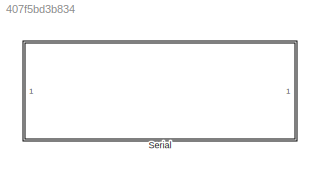
MODEL slx_407f5bd3b834
KIND library
CONFIG AbsTol = auto
CONFIG EnableMultiTasking = off
CONFIG FixedStep = auto
CONFIG MaxStep = auto
CONFIG MinStep = auto
CONFIG RelTol = 1e-3
CONFIG SampleTimeConstraint = Unconstrained
CONFIG SolverName = VariableStepAuto
CONFIG StartTime = 0.0
CONFIG StopTime = 10.0
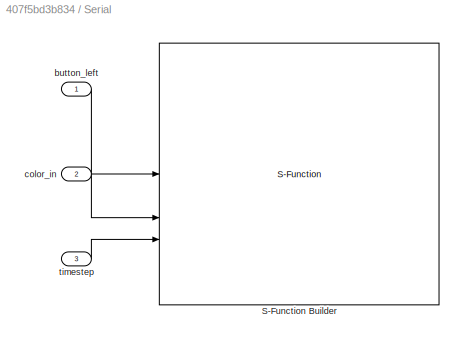
BLOCK [SubSystem] Serial
BLOCK [S-Function] Serial/S-Function Builder
  CopyFcn = set_param(gcbh,'LinkStatus','none')
  EnableBusSupport = off
  FunctionName = func_serial
  OpenFcn = sfunctionwizard(gcbh)
  SFcnIsStateOwnerBlock = off
  SFunctionDeploymentMode = off
  SFunctionModules = func_serial_wrapper.cpp
BLOCK [Inport] Serial/button_left
BLOCK [Inport] Serial/color_in
  Port = 2
BLOCK [Inport] Serial/timestep
  Port = 3
LINE Serial/button_left:1 -> Serial/S-Function Builder:1
LINE Serial/color_in:1 -> Serial/S-Function Builder:2
LINE Serial/timestep:1 -> Serial/S-Function Builder:3
